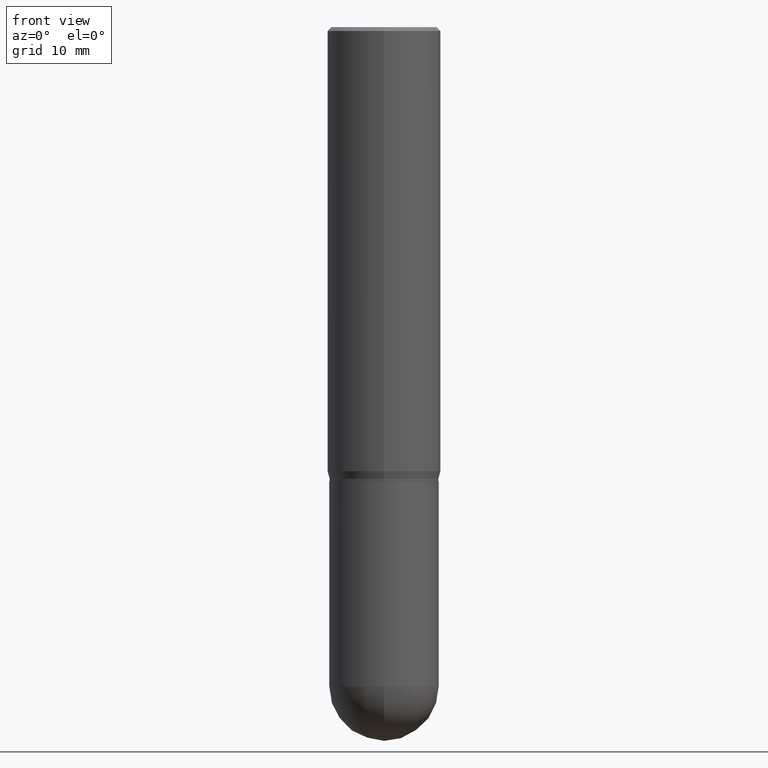
[diagram: clean part render]
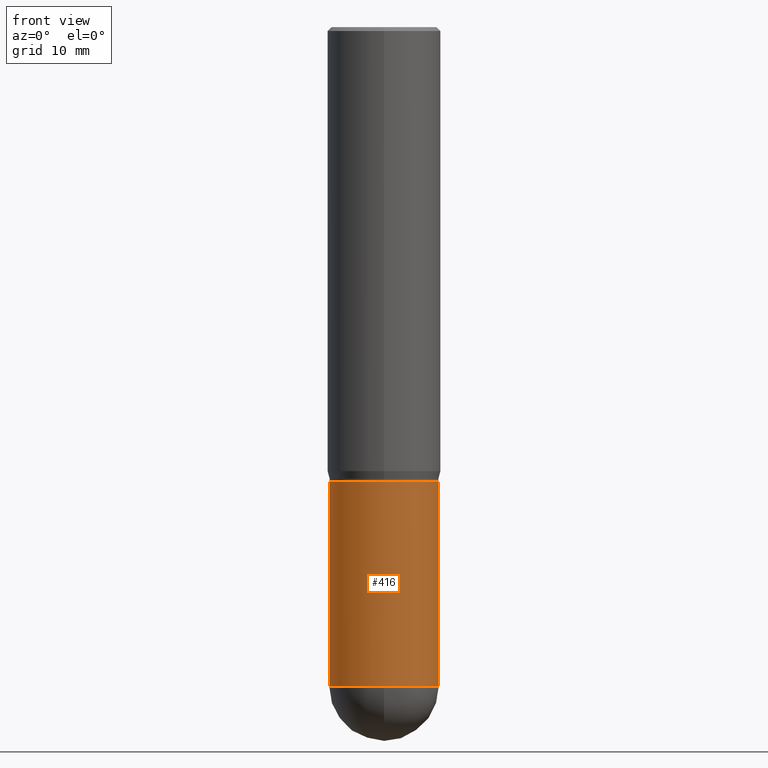
[diagram: same view with one face highlighted and labeled with its STEP entity id]
A machine part, front view. The second image highlights one B-rep face of the part: STEP entity #416.
In plain terms, the highlighted cylindrical surface (partial cylindrical patch) has radius 5.3581 mm, axis along (-0, 0, 1).
Its self-contained STEP definition (entity closure, byte-faithful):
#2 = CIRCLE ( 'NONE', #443, 0.2109499999999999986 ) ;
#10 = EDGE_CURVE ( 'NONE', #53, #455, #397, .T. ) ;
#17 = CYLINDRICAL_SURFACE ( 'NONE', #425, 0.2109500000000000541 ) ;
#26 = EDGE_LOOP ( 'NONE', ( #347, #374, #255, #467, #267 ) ) ;
#31 = VECTOR ( 'NONE', #373, 39.37007874015748143 ) ;
#32 = CARTESIAN_POINT ( 'NONE',  ( 6.209167572344372023E-29, -8.865045693389689499E-15, -2.539050000000000473 ) ) ;
#34 = DIRECTION ( 'NONE',  ( -2.445468806185136597E-29, 3.491481338843145583E-15, 1.000000000000000000 ) ) ;
#53 = VERTEX_POINT ( 'NONE', #103 ) ;
#85 = DIRECTION ( 'NONE',  ( -2.445468806185136597E-29, 3.491481338843145583E-15, 1.000000000000000000 ) ) ;
#103 = CARTESIAN_POINT ( 'NONE',  ( -1.498889901085869604E-15, -0.2109500000000089637, -2.539049999999999585 ) ) ;
#108 = EDGE_CURVE ( 'NONE', #331, #182, #2, .T. ) ;
#118 = DIRECTION ( 'NONE',  ( -2.445468806185136877E-29, 3.491481338843145188E-15, 1.000000000000000000 ) ) ;
#143 = DIRECTION ( 'NONE',  ( 1.000000000000000000, -6.982962677686265133E-15, 0.000000000000000000 ) ) ;
#145 = DIRECTION ( 'NONE',  ( -2.445468806185136597E-29, 3.491481338843145583E-15, 1.000000000000000000 ) ) ;
#150 = DIRECTION ( 'NONE',  ( 1.000000000000000000, -6.982962677686265133E-15, 0.000000000000000000 ) ) ;
#153 = CARTESIAN_POINT ( 'NONE',  ( 0.2109499999999999986, -7.583148319833423025E-15, -1.750000000000000000 ) ) ;
#170 = DIRECTION ( 'NONE',  ( -2.445468806185136597E-29, 3.491481338843145583E-15, 1.000000000000000000 ) ) ;
#182 = VERTEX_POINT ( 'NONE', #153 ) ;
#195 = AXIS2_PLACEMENT_3D ( 'NONE', #32, #34, #143 ) ;
#232 = EDGE_CURVE ( 'NONE', #394, #331, #445, .T. ) ;
#235 = CARTESIAN_POINT ( 'NONE',  ( 0.2109500000000000541, -8.960624995040515044E-15, -2.539050000000000473 ) ) ;
#249 = FACE_OUTER_BOUND ( 'NONE', #26, .T. ) ;
#252 = CARTESIAN_POINT ( 'NONE',  ( -0.2109500000000000541, 1.498889901085931727E-15, -1.037649357289272662E-29 ) ) ;
#255 = ORIENTED_EDGE ( 'NONE', *, *, #10, .T. ) ;
#267 = ORIENTED_EDGE ( 'NONE', *, *, #108, .F. ) ;
#298 = VECTOR ( 'NONE', #118, 39.37007874015748143 ) ;
#331 = VERTEX_POINT ( 'NONE', #492 ) ;
#335 = DIRECTION ( 'NONE',  ( 1.000000000000000000, -6.982962677686265922E-15, 4.876176775795935793E-29 ) ) ;
#340 = CARTESIAN_POINT ( 'NONE',  ( 0.000000000000000000, 0.000000000000000000, 0.000000000000000000 ) ) ;
#342 = CARTESIAN_POINT ( 'NONE',  ( -0.2109500000000000541, -5.988679117096665555E-15, -2.539050000000000473 ) ) ;
#347 = ORIENTED_EDGE ( 'NONE', *, *, #232, .F. ) ;
#356 = AXIS2_PLACEMENT_3D ( 'NONE', #505, #145, #150 ) ;
#366 = CARTESIAN_POINT ( 'NONE',  ( 4.279570410823988484E-29, -6.110092342975504671E-15, -1.750000000000000000 ) ) ;
#373 = DIRECTION ( 'NONE',  ( -2.445468806185136877E-29, 3.491481338843145188E-15, 1.000000000000000000 ) ) ;
#374 = ORIENTED_EDGE ( 'NONE', *, *, #477, .T. ) ;
#394 = VERTEX_POINT ( 'NONE', #342 ) ;
#397 = CIRCLE ( 'NONE', #195, 0.2109500000000000541 ) ;
#399 = DIRECTION ( 'NONE',  ( 1.000000000000000000, -6.982962677686266711E-15, 0.000000000000000000 ) ) ;
#404 = EDGE_CURVE ( 'NONE', #455, #182, #446, .T. ) ;
#416 = ADVANCED_FACE ( 'NONE', ( #249 ), #17, .T. ) ;
#425 = AXIS2_PLACEMENT_3D ( 'NONE', #340, #170, #335 ) ;
#443 = AXIS2_PLACEMENT_3D ( 'NONE', #366, #85, #399 ) ;
#445 = LINE ( 'NONE', #252, #298 ) ;
#446 = LINE ( 'NONE', #448, #31 ) ;
#448 = CARTESIAN_POINT ( 'NONE',  ( 0.2109500000000000541, -1.473055976857918157E-15, 1.028629490854152908E-29 ) ) ;
#455 = VERTEX_POINT ( 'NONE', #235 ) ;
#457 = CIRCLE ( 'NONE', #356, 0.2109500000000000541 ) ;
#467 = ORIENTED_EDGE ( 'NONE', *, *, #404, .T. ) ;
#477 = EDGE_CURVE ( 'NONE', #394, #53, #457, .T. ) ;
#492 = CARTESIAN_POINT ( 'NONE',  ( -0.2109499999999999986, -5.988679117096665555E-15, -1.750000000000000000 ) ) ;
#505 = CARTESIAN_POINT ( 'NONE',  ( 6.209167572344372023E-29, -8.865045693389689499E-15, -2.539050000000000473 ) ) ;